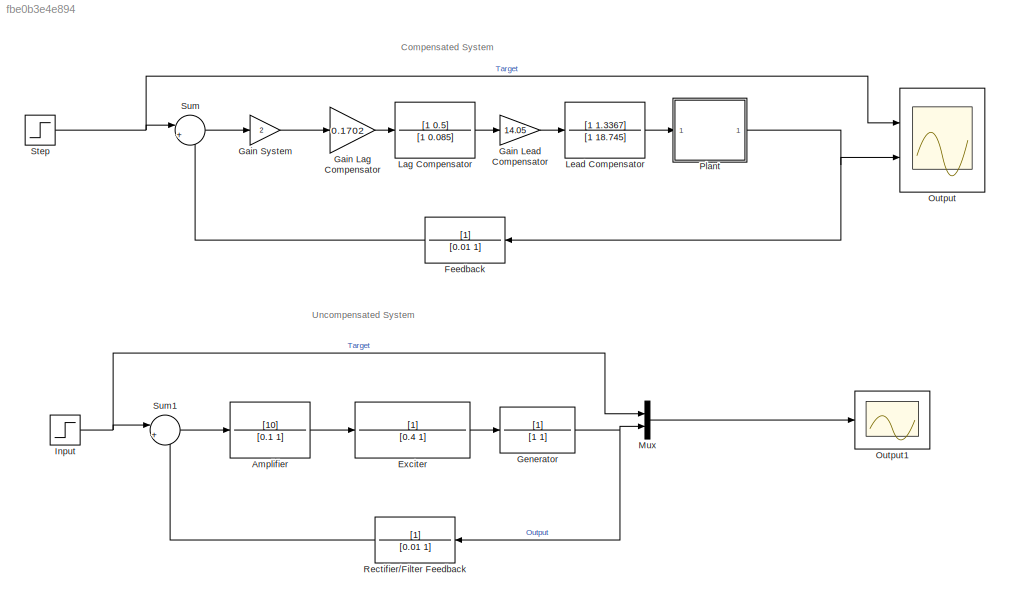
MODEL slx_fbe0b3e4e894
KIND model
CONFIG AbsTol = auto
CONFIG EnableMultiTasking = off
CONFIG FixedStep = 0.01
CONFIG MaxStep = auto
CONFIG MinStep = auto
CONFIG RelTol = 1e-3
CONFIG SampleTimeConstraint = Unconstrained
CONFIG SolverName = ode4
CONFIG StartTime = 0.0
CONFIG StopTime = 10
BLOCK [TransferFcn] Amplifier
  Denominator = [0.1 1]
  Numerator = [10]
BLOCK [TransferFcn] Exciter
  Denominator = [0.4 1]
BLOCK [TransferFcn] Feedback
  Denominator = [0.01 1]
  NameLocation = top
BLOCK [Gain] Gain Lag Compensator
  Gain = 0.1702
BLOCK [Gain] Gain Lead Compensator
  Gain = 14.05
BLOCK [Gain] Gain System
  Gain = 2
BLOCK [TransferFcn] Generator
  Denominator = [1 1]
BLOCK [Step] Input
  SampleTime = 0.01
  Time = 0
BLOCK [TransferFcn] Lag Compensator
  Denominator = [1 0.085]
  Numerator = [1 0.5]
BLOCK [TransferFcn] Lead Compensator
  Denominator = [1 18.745]
  Numerator = [1 1.3367]
BLOCK [Mux] Mux
  DisplayOption = bar
  Inputs = 2
  Ports = [2, 1]
BLOCK [Scope] Output
  Floating = off
  NumInputPorts = 2
  Ports = [2]
  ScopeSpecificationString = Simulink.scopes.TimeScopeBlockCfg('CurrentConfiguration', extmgr.ConfigurationSet(extmgr.Configuration('Core','General UI',true),extmgr.Configuration('Core','Source UI',true),extmgr.Configuration('Sources','WiredSimulink',true,'DataLogging',true,'DataLoggingSaveFormat','StructureWithTime'),extmgr.Configuration('Visuals','Time Domain',true,'TimeAxisLabels','All','SerializedDisplays',{struct('MinYLi...<+1837ch>
BLOCK [Scope] Output1
  Floating = off
  NumInputPorts = 1
  Ports = [1]
  ScopeSpecificationString = Simulink.scopes.TimeScopeBlockCfg('CurrentConfiguration', extmgr.ConfigurationSet(extmgr.Configuration('Core','General UI',true),extmgr.Configuration('Core','Source UI',true),extmgr.Configuration('Sources','WiredSimulink',true,'DataLogging',true,'DataLoggingSaveFormat','StructureWithTime','DataLoggingVariableName','ScopeData1'),extmgr.Configuration('Visuals','Time Domain',true,'SerializedDisplays'...<+1682ch>
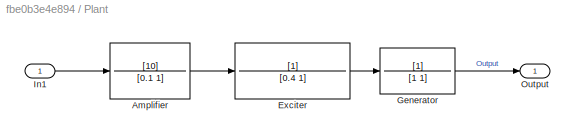
BLOCK [SubSystem] Plant
  Ports = [1, 1]
  RequestExecContextInheritance = off
BLOCK [TransferFcn] Plant/Amplifier
  Denominator = [0.1 1]
  Numerator = [10]
BLOCK [TransferFcn] Plant/Exciter
  Denominator = [0.4 1]
BLOCK [TransferFcn] Plant/Generator
  Denominator = [1 1]
BLOCK [Inport] Plant/In1
BLOCK [Outport] Plant/Output
BLOCK [TransferFcn] Rectifier//Filter Feedback
  Denominator = [0.01 1]
  NameLocation = top
BLOCK [Step] Step
  SampleTime = 0
BLOCK [Sum] Sum
  Inputs = |+-
  Ports = [2, 1]
BLOCK [Sum] Sum1
  Inputs = |+-
  Ports = [2, 1]
ANNOTATION (root): Compensated System
ANNOTATION (root): Uncompensated System
LINE Amplifier:1 -> Exciter:1
LINE Exciter:1 -> Generator:1
LINE Feedback:1 -> Sum:2
LINE Gain Lag Compensator:1 -> Lag Compensator:1
LINE Gain Lead Compensator:1 -> Lead Compensator:1
LINE Gain System:1 -> Gain Lag Compensator:1
NET Generator:1 -> Mux:2, Rectifier//Filter Feedback:1
NET Input:1 -> Mux:1, Sum1:1
LINE Lag Compensator:1 -> Gain Lead Compensator:1
LINE Lead Compensator:1 -> Plant:1
LINE Mux:1 -> Output1:1
LINE Plant/Amplifier:1 -> Plant/Exciter:1
LINE Plant/Exciter:1 -> Plant/Generator:1
LINE Plant/Generator:1 -> Plant/Output:1
LINE Plant/In1:1 -> Plant/Amplifier:1
NET Plant:1 -> Feedback:1, Output:2
LINE Rectifier//Filter Feedback:1 -> Sum1:2
NET Step:1 -> Output:1, Sum:1
LINE Sum1:1 -> Amplifier:1
LINE Sum:1 -> Gain System:1
note: NET lines group one-source signal fan-out (src -> all destinations, sorted); 1:1 wires keep LINE
